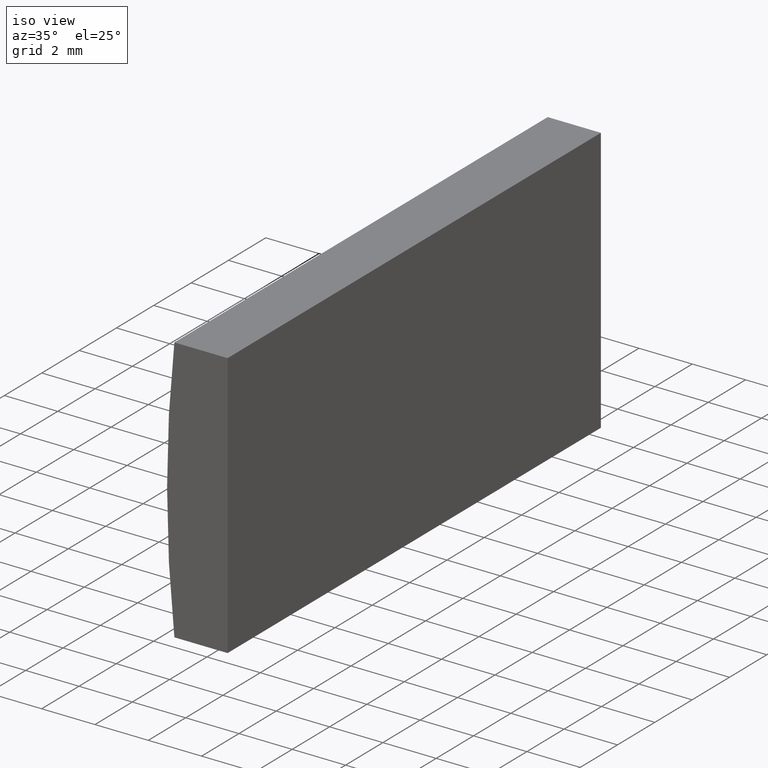
[diagram: clean part render]
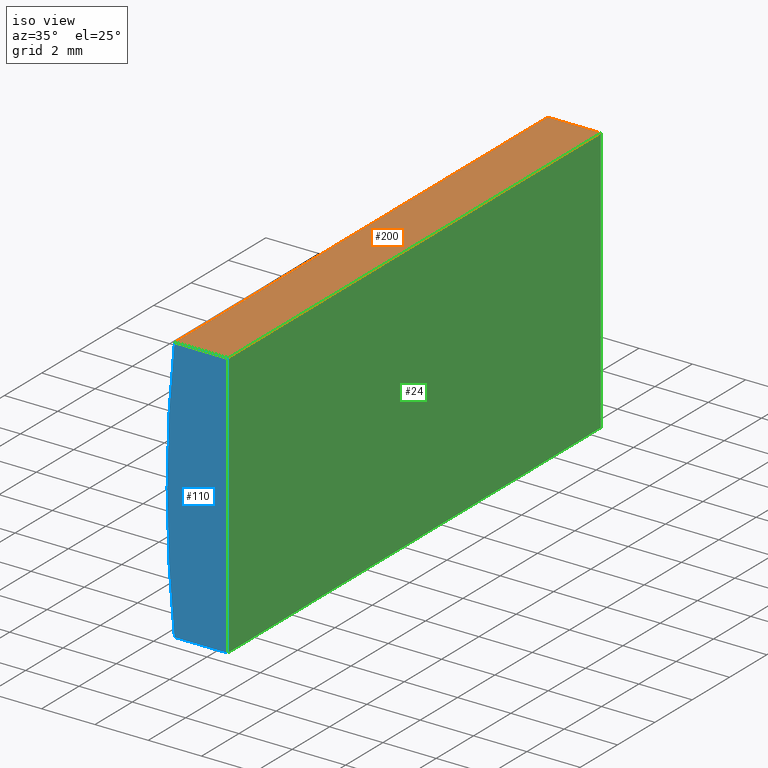
[diagram: same view with three faces highlighted in distinct colors, each labeled with its STEP entity id]
A machine part, iso view with three faces highlighted in distinct colors.
Their STEP definitions:

[orange] entity #200 — the highlighted planar face has unit normal (0, 0, -1).
#10 = VECTOR ( 'NONE', #142, 1000.000000000000000 ) ;
#11 = VERTEX_POINT ( 'NONE', #117 ) ;
#14 = VECTOR ( 'NONE', #188, 1000.000000000000000 ) ;
#27 = VECTOR ( 'NONE', #46, 1000.000000000000000 ) ;
#46 = DIRECTION ( 'NONE',  ( 1.000000000000000000, 0.0000000000000000000, 0.0000000000000000000 ) ) ;
#54 = FACE_OUTER_BOUND ( 'NONE', #64, .T. ) ;
#57 = EDGE_CURVE ( 'NONE', #203, #11, #151, .T. ) ;
#62 = CARTESIAN_POINT ( 'NONE',  ( -41.22135213884472900, 0.0000000000000000000, 5.000000000000000000 ) ) ;
#64 = EDGE_LOOP ( 'NONE', ( #181, #66, #115, #187 ) ) ;
#66 = ORIENTED_EDGE ( 'NONE', *, *, #71, .F. ) ;
#71 = EDGE_CURVE ( 'NONE', #81, #11, #145, .T. ) ;
#72 = CARTESIAN_POINT ( 'NONE',  ( -41.22135213884472900, 0.0000000000000000000, 5.000000000000000000 ) ) ;
#81 = VERTEX_POINT ( 'NONE', #184 ) ;
#89 = CARTESIAN_POINT ( 'NONE',  ( -39.22479566514873300, 20.00000000000000000, 5.000000000000000000 ) ) ;
#108 = EDGE_CURVE ( 'NONE', #130, #203, #169, .T. ) ;
#115 = ORIENTED_EDGE ( 'NONE', *, *, #138, .F. ) ;
#117 = CARTESIAN_POINT ( 'NONE',  ( -39.22479566514873300, 0.0000000000000000000, 5.000000000000000000 ) ) ;
#118 = CARTESIAN_POINT ( 'NONE',  ( -41.22135213884472900, 20.00000000000000000, 5.000000000000000000 ) ) ;
#125 = DIRECTION ( 'NONE',  ( -0.0000000000000000000, -1.000000000000000000, -0.0000000000000000000 ) ) ;
#130 = VERTEX_POINT ( 'NONE', #139 ) ;
#137 = LINE ( 'NONE', #118, #27 ) ;
#138 = EDGE_CURVE ( 'NONE', #130, #81, #137, .T. ) ;
#139 = CARTESIAN_POINT ( 'NONE',  ( -41.22135213884472900, 20.00000000000000000, 5.000000000000000000 ) ) ;
#141 = DIRECTION ( 'NONE',  ( 0.0000000000000000000, 0.0000000000000000000, -1.000000000000000000 ) ) ;
#142 = DIRECTION ( 'NONE',  ( 1.000000000000000000, 0.0000000000000000000, 0.0000000000000000000 ) ) ;
#145 = LINE ( 'NONE', #89, #191 ) ;
#146 = DIRECTION ( 'NONE',  ( -1.000000000000000000, 0.0000000000000000000, -0.0000000000000000000 ) ) ;
#151 = LINE ( 'NONE', #72, #10 ) ;
#159 = AXIS2_PLACEMENT_3D ( 'NONE', #167, #141, #146 ) ;
#167 = CARTESIAN_POINT ( 'NONE',  ( -41.22135213884472900, 20.00000000000000000, 5.000000000000000000 ) ) ;
#169 = LINE ( 'NONE', #177, #14 ) ;
#177 = CARTESIAN_POINT ( 'NONE',  ( -41.22135213884472900, 20.00000000000000000, 5.000000000000000000 ) ) ;
#181 = ORIENTED_EDGE ( 'NONE', *, *, #57, .T. ) ;
#184 = CARTESIAN_POINT ( 'NONE',  ( -39.22479566514873300, 20.00000000000000000, 5.000000000000000000 ) ) ;
#187 = ORIENTED_EDGE ( 'NONE', *, *, #108, .T. ) ;
#188 = DIRECTION ( 'NONE',  ( -0.0000000000000000000, -1.000000000000000000, -0.0000000000000000000 ) ) ;
#191 = VECTOR ( 'NONE', #125, 1000.000000000000000 ) ;
#198 = PLANE ( 'NONE',  #159 ) ;
#200 = ADVANCED_FACE ( 'NONE', ( #54 ), #198, .F. ) ;
#203 = VERTEX_POINT ( 'NONE', #62 ) ;

[blue] entity #110 — the highlighted planar face has unit normal (0, 1, 0).
#1 = CARTESIAN_POINT ( 'NONE',  ( 4.355204334851265500, 0.0000000000000000000, 4.286263797015675000E-017 ) ) ;
#10 = VECTOR ( 'NONE', #142, 1000.000000000000000 ) ;
#11 = VERTEX_POINT ( 'NONE', #117 ) ;
#16 = ORIENTED_EDGE ( 'NONE', *, *, #98, .F. ) ;
#26 = VERTEX_POINT ( 'NONE', #190 ) ;
#28 = ORIENTED_EDGE ( 'NONE', *, *, #57, .F. ) ;
#29 = CARTESIAN_POINT ( 'NONE',  ( -39.22479566514873300, 0.0000000000000000000, -5.000000000000001800 ) ) ;
#35 = VECTOR ( 'NONE', #172, 1000.000000000000000 ) ;
#38 = PLANE ( 'NONE',  #82 ) ;
#56 = LINE ( 'NONE', #165, #202 ) ;
#57 = EDGE_CURVE ( 'NONE', #203, #11, #151, .T. ) ;
#62 = CARTESIAN_POINT ( 'NONE',  ( -41.22135213884472900, 0.0000000000000000000, 5.000000000000000000 ) ) ;
#67 = CIRCLE ( 'NONE', #127, 45.85000000000000100 ) ;
#72 = CARTESIAN_POINT ( 'NONE',  ( -41.22135213884472900, 0.0000000000000000000, 5.000000000000000000 ) ) ;
#74 = ORIENTED_EDGE ( 'NONE', *, *, #114, .F. ) ;
#76 = DIRECTION ( 'NONE',  ( 0.0000000000000000000, 0.0000000000000000000, 1.000000000000000000 ) ) ;
#78 = DIRECTION ( 'NONE',  ( 0.0000000000000000000, 1.000000000000000000, 0.0000000000000000000 ) ) ;
#82 = AXIS2_PLACEMENT_3D ( 'NONE', #178, #78, #157 ) ;
#87 = DIRECTION ( 'NONE',  ( 0.0000000000000000000, 1.000000000000000000, 0.0000000000000000000 ) ) ;
#91 = EDGE_LOOP ( 'NONE', ( #74, #93, #16, #28 ) ) ;
#93 = ORIENTED_EDGE ( 'NONE', *, *, #106, .F. ) ;
#98 = EDGE_CURVE ( 'NONE', #11, #196, #99, .T. ) ;
#99 = LINE ( 'NONE', #29, #35 ) ;
#106 = EDGE_CURVE ( 'NONE', #196, #26, #56, .T. ) ;
#110 = ADVANCED_FACE ( 'NONE', ( #182 ), #38, .F. ) ;
#114 = EDGE_CURVE ( 'NONE', #26, #203, #67, .T. ) ;
#117 = CARTESIAN_POINT ( 'NONE',  ( -39.22479566514873300, 0.0000000000000000000, 5.000000000000000000 ) ) ;
#127 = AXIS2_PLACEMENT_3D ( 'NONE', #1, #87, #76 ) ;
#142 = DIRECTION ( 'NONE',  ( 1.000000000000000000, 0.0000000000000000000, 0.0000000000000000000 ) ) ;
#151 = LINE ( 'NONE', #72, #10 ) ;
#157 = DIRECTION ( 'NONE',  ( 0.0000000000000000000, -0.0000000000000000000, 1.000000000000000000 ) ) ;
#165 = CARTESIAN_POINT ( 'NONE',  ( -41.22135213884472900, 0.0000000000000000000, -5.000000000000000000 ) ) ;
#172 = DIRECTION ( 'NONE',  ( -0.0000000000000000000, -0.0000000000000000000, -1.000000000000000000 ) ) ;
#178 = CARTESIAN_POINT ( 'NONE',  ( 4.355204334851265500, 0.0000000000000000000, 4.286263797015675000E-017 ) ) ;
#180 = DIRECTION ( 'NONE',  ( -1.000000000000000000, -0.0000000000000000000, 8.688577051694975100E-016 ) ) ;
#182 = FACE_OUTER_BOUND ( 'NONE', #91, .T. ) ;
#190 = CARTESIAN_POINT ( 'NONE',  ( -41.22135213884472900, 0.0000000000000000000, -5.000000000000000000 ) ) ;
#193 = CARTESIAN_POINT ( 'NONE',  ( -39.22479566514873300, 0.0000000000000000000, -5.000000000000001800 ) ) ;
#196 = VERTEX_POINT ( 'NONE', #193 ) ;
#202 = VECTOR ( 'NONE', #180, 1000.000000000000000 ) ;
#203 = VERTEX_POINT ( 'NONE', #62 ) ;

[green] entity #24 — the highlighted planar face has unit normal (-1, 0, 0).
#11 = VERTEX_POINT ( 'NONE', #117 ) ;
#17 = ORIENTED_EDGE ( 'NONE', *, *, #189, .F. ) ;
#18 = DIRECTION ( 'NONE',  ( -1.000000000000000000, 0.0000000000000000000, 0.0000000000000000000 ) ) ;
#20 = DIRECTION ( 'NONE',  ( -0.0000000000000000000, -1.000000000000000000, -0.0000000000000000000 ) ) ;
#22 = PLANE ( 'NONE',  #34 ) ;
#24 = ADVANCED_FACE ( 'NONE', ( #148 ), #22, .F. ) ;
#25 = LINE ( 'NONE', #58, #176 ) ;
#29 = CARTESIAN_POINT ( 'NONE',  ( -39.22479566514873300, 0.0000000000000000000, -5.000000000000001800 ) ) ;
#34 = AXIS2_PLACEMENT_3D ( 'NONE', #107, #18, #94 ) ;
#35 = VECTOR ( 'NONE', #172, 1000.000000000000000 ) ;
#37 = ORIENTED_EDGE ( 'NONE', *, *, #98, .T. ) ;
#41 = EDGE_LOOP ( 'NONE', ( #37, #17, #179, #70 ) ) ;
#58 = CARTESIAN_POINT ( 'NONE',  ( -39.22479566514873300, 20.00000000000000000, -5.000000000000001800 ) ) ;
#61 = VERTEX_POINT ( 'NONE', #109 ) ;
#69 = LINE ( 'NONE', #186, #104 ) ;
#70 = ORIENTED_EDGE ( 'NONE', *, *, #71, .T. ) ;
#71 = EDGE_CURVE ( 'NONE', #81, #11, #145, .T. ) ;
#81 = VERTEX_POINT ( 'NONE', #184 ) ;
#89 = CARTESIAN_POINT ( 'NONE',  ( -39.22479566514873300, 20.00000000000000000, 5.000000000000000000 ) ) ;
#94 = DIRECTION ( 'NONE',  ( 0.0000000000000000000, 0.0000000000000000000, 1.000000000000000000 ) ) ;
#98 = EDGE_CURVE ( 'NONE', #11, #196, #99, .T. ) ;
#99 = LINE ( 'NONE', #29, #35 ) ;
#104 = VECTOR ( 'NONE', #126, 1000.000000000000000 ) ;
#107 = CARTESIAN_POINT ( 'NONE',  ( -39.22479566514873300, 20.00000000000000000, -5.000000000000001800 ) ) ;
#109 = CARTESIAN_POINT ( 'NONE',  ( -39.22479566514873300, 20.00000000000000000, -5.000000000000001800 ) ) ;
#117 = CARTESIAN_POINT ( 'NONE',  ( -39.22479566514873300, 0.0000000000000000000, 5.000000000000000000 ) ) ;
#125 = DIRECTION ( 'NONE',  ( -0.0000000000000000000, -1.000000000000000000, -0.0000000000000000000 ) ) ;
#126 = DIRECTION ( 'NONE',  ( -0.0000000000000000000, -0.0000000000000000000, -1.000000000000000000 ) ) ;
#129 = EDGE_CURVE ( 'NONE', #81, #61, #69, .T. ) ;
#145 = LINE ( 'NONE', #89, #191 ) ;
#148 = FACE_OUTER_BOUND ( 'NONE', #41, .T. ) ;
#172 = DIRECTION ( 'NONE',  ( -0.0000000000000000000, -0.0000000000000000000, -1.000000000000000000 ) ) ;
#176 = VECTOR ( 'NONE', #20, 1000.000000000000000 ) ;
#179 = ORIENTED_EDGE ( 'NONE', *, *, #129, .F. ) ;
#184 = CARTESIAN_POINT ( 'NONE',  ( -39.22479566514873300, 20.00000000000000000, 5.000000000000000000 ) ) ;
#186 = CARTESIAN_POINT ( 'NONE',  ( -39.22479566514873300, 20.00000000000000000, -5.000000000000001800 ) ) ;
#189 = EDGE_CURVE ( 'NONE', #61, #196, #25, .T. ) ;
#191 = VECTOR ( 'NONE', #125, 1000.000000000000000 ) ;
#193 = CARTESIAN_POINT ( 'NONE',  ( -39.22479566514873300, 0.0000000000000000000, -5.000000000000001800 ) ) ;
#196 = VERTEX_POINT ( 'NONE', #193 ) ;